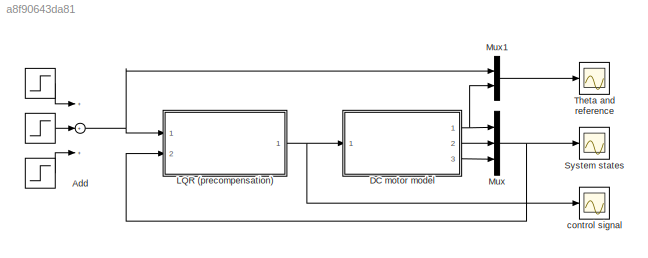
MODEL slx_a8f90643da81
KIND model
CONFIG AbsTol = auto
CONFIG FixedStep = auto
CONFIG MaxStep = 1e-2
CONFIG MinStep = auto
CONFIG RelTol = 1e-3
CONFIG SampleTimeConstraint = Unconstrained
CONFIG Solver = VariableStepAuto
CONFIG SolverMode = Auto
CONFIG SolverName = VariableStepAuto
CONFIG StartTime = 0.0
CONFIG StopTime = 10
BLOCK [Step]   
  SampleTime = 0
  Time = 0
BLOCK [Step]    
  After = -2
  SampleTime = 0
  Time = 4
BLOCK [Step]     
  SampleTime = 0
  Time = 8
BLOCK [Sum] Add
  InputSameDT = off
  Inputs = +++
  OutDataTypeStr = Inherit: Inherit via internal rule
  Ports = [3, 1]
  SaturateOnIntegerOverflow = off
BLOCK [ModelReference] DC motor model
  CopyOfModelName = DC_motor_c.slx
  ModelNameDialog = DC_motor_c.slx
  ModelReferenceVersion = 1.7
  Ports = [1, 3]
  Variant = off
BLOCK [ModelReference] LQR (precompensation)
  CopyOfModelName = LQRp_c.slx
  ModelNameDialog = LQRp_c.slx
  ModelReferenceVersion = 1.4
  Ports = [2, 1]
  Variant = off
BLOCK [Mux] Mux
  DisplayOption = bar
  Inputs = 3
  Ports = [3, 1]
BLOCK [Mux] Mux1
  DisplayOption = bar
  Inputs = 2
  Ports = [2, 1]
BLOCK [Scope] System states
  Ports = [1]
  ScopeSpecificationString = Simulink.scopes.TimeScopeBlockCfg('CurrentConfiguration', extmgr.ConfigurationSet(extmgr.Configuration('Core','General UI',true),extmgr.Configuration('Core','Source UI',true),extmgr.Configuration('Sources','WiredSimulink',true,'DataLoggingLimitDataPoints',true,'DataLoggingSaveFormat','Array','DataLoggingDecimation','1','DataLoggingDecimateData',true),extmgr.Configuration('Visuals','Time Domain',tr...<+1556ch>
BLOCK [Scope] Theta and reference
  Ports = [1]
  ScopeSpecificationString = Simulink.scopes.TimeScopeBlockCfg('CurrentConfiguration', extmgr.ConfigurationSet(extmgr.Configuration('Core','General UI',true),extmgr.Configuration('Core','Source UI',true),extmgr.Configuration('Sources','WiredSimulink',true,'DataLoggingVariableName','ScopeData1'),extmgr.Configuration('Visuals','Time Domain',true,'SerializedDisplays',{struct('MinYLimReal','-1.253','MaxYLimReal','1.25174','YLabel...<+1373ch>
BLOCK [Scope] control signal
  Ports = [1]
  ScopeSpecificationString = Simulink.scopes.TimeScopeBlockCfg('CurrentConfiguration', extmgr.ConfigurationSet(extmgr.Configuration('Core','General UI',true),extmgr.Configuration('Core','Source UI',true),extmgr.Configuration('Sources','WiredSimulink',true,'DataLoggingLimitDataPoints',true,'DataLoggingSaveFormat','Array','DataLoggingDecimation','1','DataLoggingDecimateData',true,'DataLoggingVariableName','ScopeData1'),extmgr.C...<+1511ch>
LINE     :1 -> Add:3
LINE    :1 -> Add:2
LINE   :1 -> Add:1
NET Add:1 -> LQR (precompensation):1, Mux1:1
NET DC motor model:1 -> Mux1:2, Mux:1
LINE DC motor model:2 -> Mux:2
LINE DC motor model:3 -> Mux:3
NET LQR (precompensation):1 -> DC motor model:1, control signal:1
LINE Mux1:1 -> Theta and reference:1
NET Mux:1 -> LQR (precompensation):2, System states:1
note: NET lines group one-source signal fan-out (src -> all destinations, sorted); 1:1 wires keep LINE
